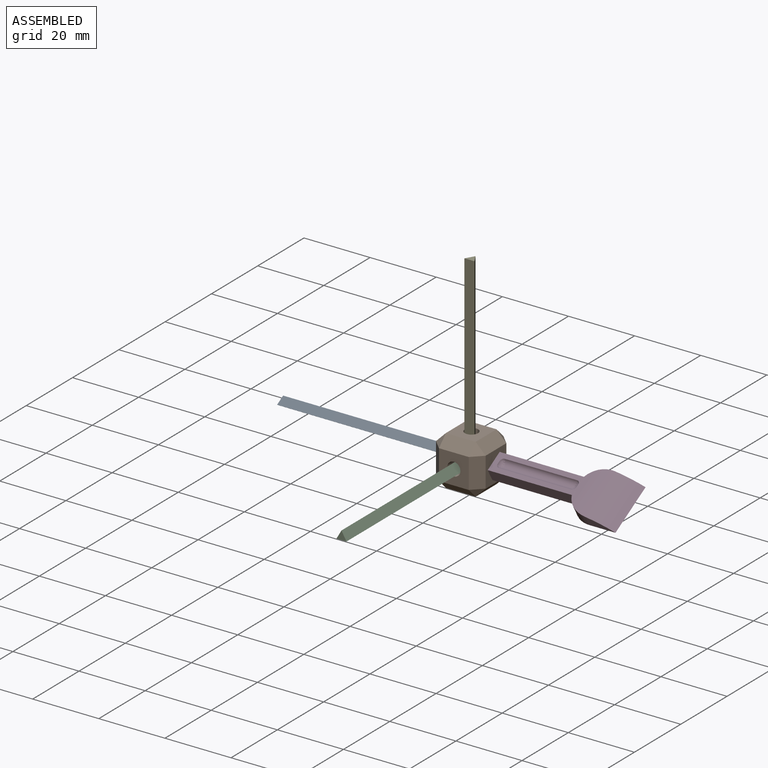
[diagram: assembled view]
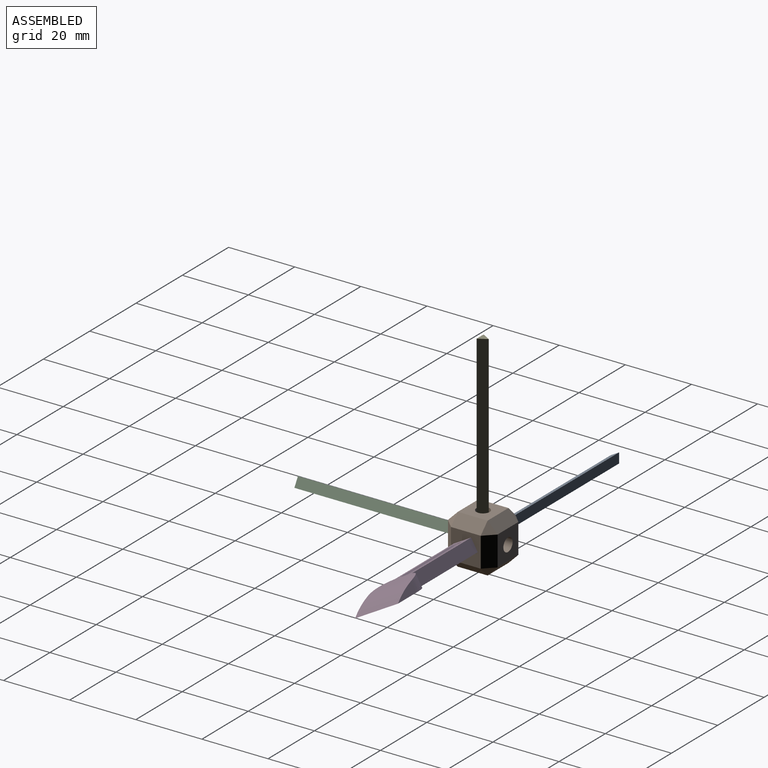
[diagram: assembled view, second angle]
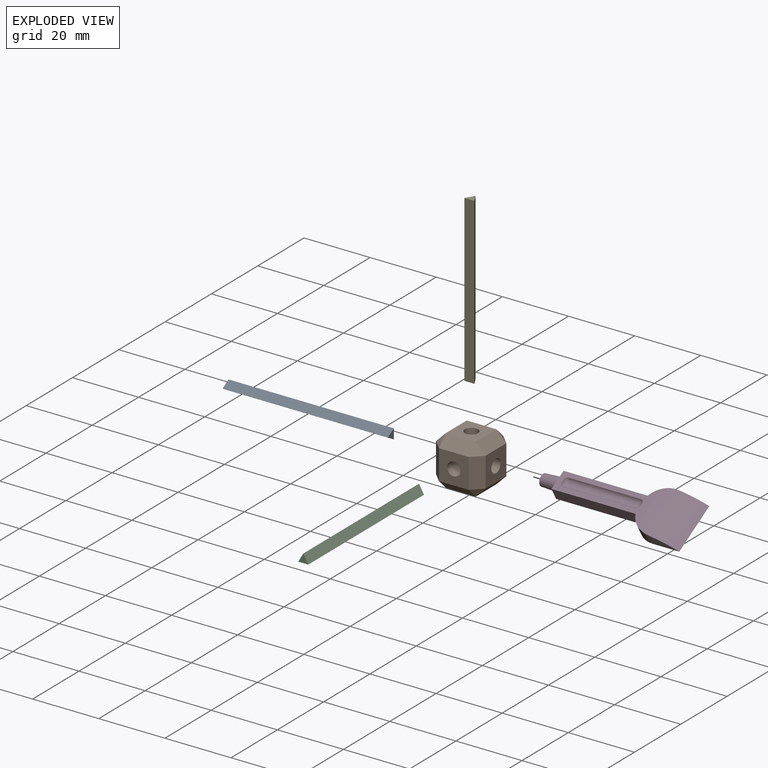
[diagram: exploded view]
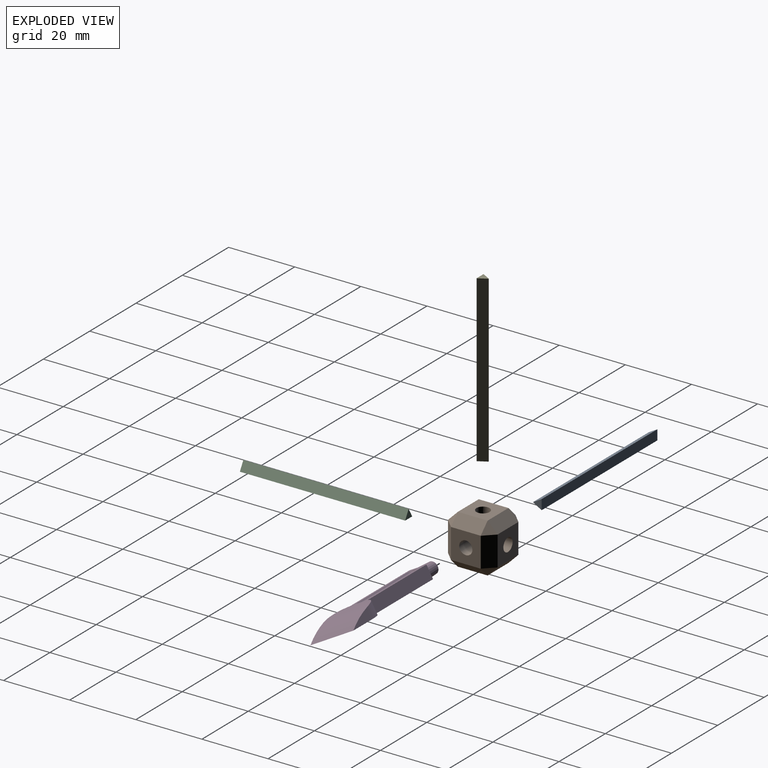
[diagram: exploded view, second angle]
ASSEMBLY  parts=5 mates=4
PART A: 5 faces, bbox 50x2.6x3 mm
  f0: plane 50x2.63mm, normal (0,-0.5,-0.87), area 151.6mm2, adj f1,f2,f3,f4
  f1: plane 50x3.03mm, normal (0,1,0), area 151.6mm2, adj f0,f2,f3,f4
  f2: plane 50x2.63mm, normal (0,-0.5,0.87), area 151.6mm2, adj f0,f1,f3,f4
  f3: plane 3.03x2.63mm, normal (1,0,0), area 4mm2, adj f0,f1,f2
  f4: plane 3.03x2.63mm, normal (-1,0,0), area 4mm2, adj f0,f1,f2
PART B: 32 faces, bbox 15x15x15 mm
  f0: cylinder r=2mm len=6.13mm, axis (0,0,1), area 71.6mm2, adj f5,f8,f9,f10,f11
  f1: plane 9x9mm, normal (-1,0,0), area 68.4mm2, adj f8,f17,f26,f27,f31
  f2: plane 9x9mm, normal (0,-1,0), area 68.4mm2, adj f11,f12,f16,f17,f18
  f3: plane 9x9mm, normal (1,0,0), area 68.4mm2, adj f9,f12,f15,f19,f20
  f4: plane 9x9mm, normal (0,1,0), area 68.4mm2, adj f10,f20,f25,f28,f31
  f5: plane 9x9mm, normal (0,0,1), area 68.4mm2, adj f0,f15,f16,f25,f26
  f6: plane 9x9mm, normal (0,0,-1), area 68.4mm2, adj f7,f18,f19,f27,f28
  f7: cylinder r=2mm len=6.13mm, axis (0,0,1), area 71.6mm2, adj f6,f8,f9,f10,f11
  f8: cylinder r=2mm len=6.13mm, axis (-1,0,0), area 72.2mm2, adj f0,f1,f7,f10,f11
  f9: cylinder r=2mm len=6.04mm, axis (-1,0,0), area 71.1mm2, adj f0,f3,f7,f10,f11
  f10: cylinder r=2mm len=6.13mm, axis (0,-1,0), area 71.6mm2, adj f0,f4,f7,f8,f9
  f11: cylinder r=2mm len=6.13mm, axis (0,-1,0), area 71.6mm2, adj f0,f2,f7,f8,f9
  f12: plane 9x3mm, normal (0.71,-0.71,0), area 38.2mm2, adj f2,f3,f13,f14
  f13: plane 3x3mm, normal (0.58,-0.58,0.58), area 7.8mm2, adj f12,f15,f16
  f14: plane 3x3mm, normal (0.58,-0.58,-0.58), area 7.8mm2, adj f12,f18,f19
  f15: plane 9x3mm, normal (0.71,0,0.71), area 38.2mm2, adj f3,f5,f13,f21
  f16: plane 9x3mm, normal (0,-0.71,0.71), area 38.2mm2, adj f2,f5,f13,f22
  f17: plane 9x3mm, normal (-0.71,-0.71,0), area 38.2mm2, adj f1,f2,f22,f23
  f18: plane 9x3mm, normal (0,-0.71,-0.71), area 38.2mm2, adj f2,f6,f14,f23
  f19: plane 9x3mm, normal (0.71,0,-0.71), area 38.2mm2, adj f3,f6,f14,f24
  f20: plane 9x3mm, normal (0.71,0.71,0), area 38.2mm2, adj f3,f4,f21,f24
  f21: plane 3x3mm, normal (0.58,0.58,0.58), area 7.8mm2, adj f15,f20,f25
  f22: plane 3x3mm, normal (-0.58,-0.58,0.58), area 7.8mm2, adj f16,f17,f26
  f23: plane 3x3mm, normal (-0.58,-0.58,-0.58), area 7.8mm2, adj f17,f18,f27
  f24: plane 3x3mm, normal (0.58,0.58,-0.58), area 7.8mm2, adj f19,f20,f28
  f25: plane 9x3mm, normal (0,0.71,0.71), area 38.2mm2, adj f4,f5,f21,f29
  f26: plane 9x3mm, normal (-0.71,0,0.71), area 38.2mm2, adj f1,f5,f22,f29
  f27: plane 9x3mm, normal (-0.71,0,-0.71), area 38.2mm2, adj f1,f6,f23,f30
  f28: plane 9x3mm, normal (0,0.71,-0.71), area 38.2mm2, adj f4,f6,f24,f30
  f29: plane 3x3mm, normal (-0.58,0.58,0.58), area 7.8mm2, adj f25,f26,f31
  f30: plane 3x3mm, normal (-0.58,0.58,-0.58), area 7.8mm2, adj f27,f28,f31
  f31: plane 9x3mm, normal (-0.71,0.71,0), area 38.2mm2, adj f1,f4,f29,f30
PART C: same geometry as A
PART D: 30 faces, bbox 45x15x4 mm
  f0: bspline ~23.09x1.48mm, area 43.3mm2, adj f1,f12,f24,f26
  f1: bspline ~23.09x1.52mm, area 44.1mm2, adj f0,f12,f27,f29
  f2: plane 3.48x3.48mm, normal (-1,0,0), area 9.5mm2, adj f13
  f3: plane 4x3mm, normal (-1,0,0), area 5.7mm2, adj f4,f11,f12,f13
  f4: plane 25.46x4mm, normal (0,-1,0), area 101.8mm2, adj f3,f5,f11,f12,f14
  f5: cylinder r=7mm len=6.54mm, axis (0,0,-1), area 30.4mm2, adj f4,f6,f12,f14
  f6: plane 8x3.22mm, normal (0,-1,0), area 14.7mm2, adj f5,f12,f14
  f7: plane 8x3.22mm, normal (0,1,0), area 14.7mm2, adj f8,f12,f14
  f8: cylinder r=7mm len=6.54mm, axis (0,0,-1), area 30.4mm2, adj f7,f9,f12,f14
  f9: plane 25.46x4mm, normal (0,1,0), area 101.8mm2, adj f8,f10,f11,f12,f14
  f10: plane 4x3mm, normal (-1,0,0), area 5.7mm2, adj f9,f11,f12,f13
  f11: plane 25.3x6mm, normal (0,0,1), area 81.3mm2, adj f3,f4,f9,f10,f14,f16,f18,f19
  f12: plane 40.02x15.02mm, normal (0,0,-1), area 280.3mm2, adj f0,f1,f3,f4,f5,f6,f7,f8
  f13: cone r=2mm half-angle=3deg, axis (1,0,0), area 58.8mm2, adj f2,f3,f10
  f14: cylinder r=29mm len=15mm, axis (0,-1,0), area 213.6mm2, adj f4,f5,f6,f7,f8,f9,f11,f12
  f15: plane 20.84x0.03mm, normal (0,0,1), area 0.7mm2, adj f17,f18,f21,f22
  f16: bspline ~1.48x1.48mm, area 1.2mm2, adj f11,f17,f18
  f17: cylinder r=1.6mm len=1.48mm, axis (0,-1,0), area 1.1mm2, adj f14,f15,f16,f19
  f18: cylinder r=1.6mm len=21.8mm, axis (-1,0,0), area 40.5mm2, adj f11,f15,f16,f20
  f19: bspline ~1.48x1.48mm, area 1.2mm2, adj f11,f17,f21
  f20: bspline ~1.48x1.48mm, area 1.2mm2, adj f11,f18,f22
  f21: cylinder r=1.6mm len=21.8mm, axis (1,0,0), area 40.5mm2, adj f11,f15,f19,f23
  f22: cylinder r=1.6mm len=1.48mm, axis (0,1,0), area 1.1mm2, adj f11,f15,f20,f23
  f23: bspline ~1.48x1.48mm, area 1.2mm2, adj f11,f21,f22
  f24: bspline ~1.48x1.48mm, area 1.2mm2, adj f0,f12,f25
  f25: bspline ~1.48x1mm, area 1mm2, adj f12,f24,f27
  f26: bspline ~1.48x1.48mm, area 1.2mm2, adj f0,f12,f28
  f27: bspline ~1.48x1.48mm, area 1.2mm2, adj f1,f12,f25
  f28: bspline ~1.48x1mm, area 0.9mm2, adj f12,f26,f29
  f29: bspline ~1.48x1.48mm, area 1.2mm2, adj f1,f12,f28
PART E: same geometry as A
PLACE A rot(axis=(1,0,0),0deg) t=(-32.59,21.13,0.92)mm
PLACE B rot(axis=(1,0,0),0deg) t=(0,0.99,1.18)mm
PLACE C rot(axis=(-0.58,-0.58,0.58),120deg) t=(0.17,-30.05,-18.96)mm
PLACE D rot(axis=(1,0,0),30deg) t=(19.42,-35.25,-22.05)mm
PLACE E rot(axis=(0.71,0,-0.71),180deg) t=(0.26,-19.15,30.88)mm
MATE revolute D.f13 <-> B.f8  axis (1,0,0) through (7.41,0.99,1.18)mm
MATE slider E.f3 <-> B.f0  axis (0,0,-1) through (0,0.99,5.88)mm
MATE slider C.f3 <-> B.f10  axis (0,1,0) through (-0.09,-5.05,1.18)mm
MATE slider A.f3 <-> B.f8  axis (1,0,0) through (-7.59,0.99,1.18)mm
